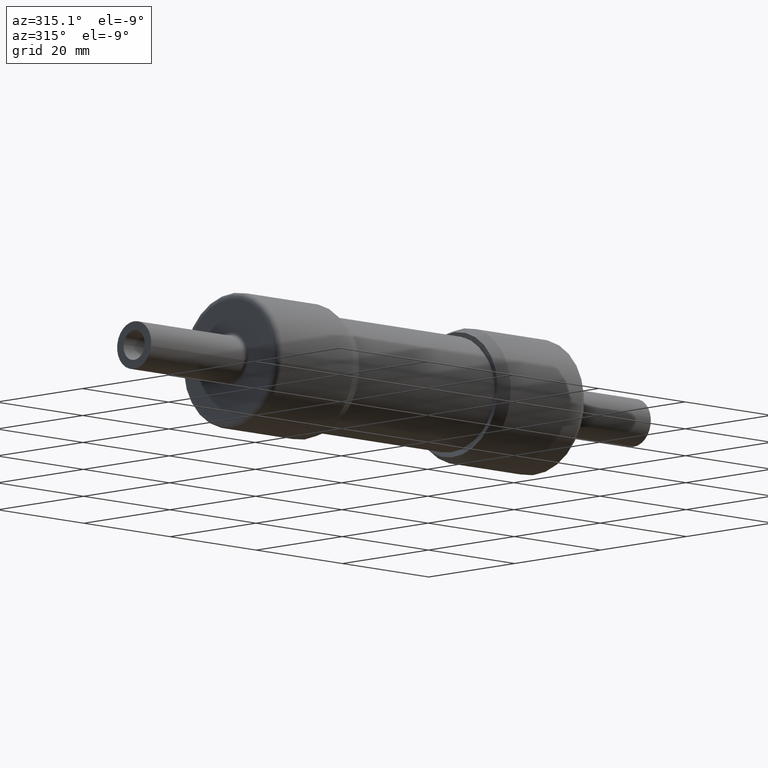
[diagram: clean part render]
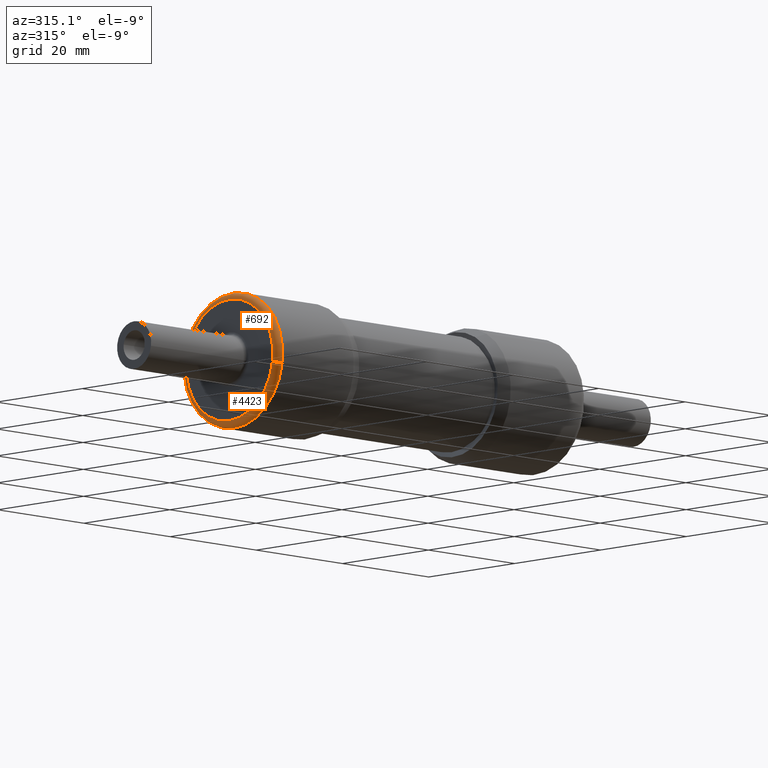
[diagram: same view with one multi-face feature highlighted, each face labeled with its STEP entity id]
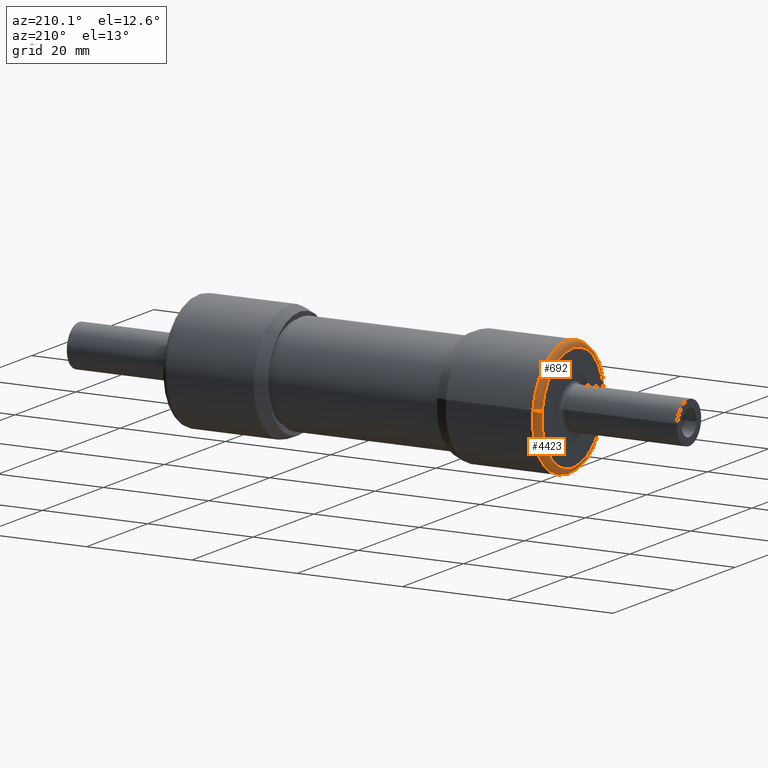
[diagram: same view with one multi-face feature highlighted, each face labeled with its STEP entity id]
A machine part, auxiliary view. The highlighted faces form ONE feature: a constant-radius fillet chain: 2 tangent blend faces with common blend radius 1.143 mm. The faces share edges in the B-rep.
A second angle (auxiliary view) of the same feature is appended — it is thin or edge-on in the first view.
Their STEP definitions:
[1] entity #692 (Torus):
#97 = DIRECTION ( 'NONE',  ( 9.449715977263552140E-17, 0.1403894676176966061, -0.9900963576248624776 ) ) ;
#584 = DIRECTION ( 'NONE',  ( 0.000000000000000000, -0.9900963576248624776, -0.1403894676176964673 ) ) ;
#692 = ADVANCED_FACE ( 'NONE', ( #5817 ), #1964, .T. ) ;
#926 = DIRECTION ( 'NONE',  ( 7.332862660272145490E-17, 0.9900963576248625886, 0.1403894676176964951 ) ) ;
#928 = EDGE_LOOP ( 'NONE', ( #5331, #3775, #2718, #1090 ) ) ;
#1090 = ORIENTED_EDGE ( 'NONE', *, *, #1818, .F. ) ;
#1119 = CARTESIAN_POINT ( 'NONE',  ( -0.1904999999999999472, 0.4386126864278159232, 0.06219253415463967677 ) ) ;
#1509 = AXIS2_PLACEMENT_3D ( 'NONE', #4929, #4395, #584 ) ;
#1580 = CARTESIAN_POINT ( 'NONE',  ( -0.1905000000000000304, -0.4386126864278139803, -0.06219253415463969065 ) ) ;
#1688 = CARTESIAN_POINT ( 'NONE',  ( -0.2355000000000001259, -0.3940583503346966610, -0.05587500811184357985 ) ) ;
#1818 = EDGE_CURVE ( 'NONE', #6496, #5041, #3591, .T. ) ;
#1964 = TOROIDAL_SURFACE ( 'NONE', #6317, 0.3980000000000000204, 0.04499999999999999833 ) ;
#2093 = CARTESIAN_POINT ( 'NONE',  ( -0.1905000000000000027, 1.173826660871846159E-16, -1.138256155996946668E-16 ) ) ;
#2225 = AXIS2_PLACEMENT_3D ( 'NONE', #3099, #5865, #3623 ) ;
#2229 = CARTESIAN_POINT ( 'NONE',  ( -0.2355000000000000426, 0.3940583503346969385, 0.05587500811184330229 ) ) ;
#2718 = ORIENTED_EDGE ( 'NONE', *, *, #4277, .T. ) ;
#3053 = DIRECTION ( 'NONE',  ( 7.708374699955566724E-17, 0.9900963576248625886, 0.1403894676176964951 ) ) ;
#3099 = CARTESIAN_POINT ( 'NONE',  ( -0.2354999999999999871, 1.212467626299230878E-16, -1.175726183078043669E-16 ) ) ;
#3112 = CIRCLE ( 'NONE', #1509, 0.04500000000000002609 ) ;
#3234 = AXIS2_PLACEMENT_3D ( 'NONE', #4721, #6333, #3053 ) ;
#3491 = VERTEX_POINT ( 'NONE', #1580 ) ;
#3591 = CIRCLE ( 'NONE', #2225, 0.3980000000000014637 ) ;
#3623 = DIRECTION ( 'NONE',  ( 8.579924603216875331E-17, 0.9900963576248625886, 0.1403894676176964951 ) ) ;
#3744 = DIRECTION ( 'NONE',  ( -1.000000000000000000, 8.586881206085282632E-17, -8.326672684688819499E-17 ) ) ;
#3775 = ORIENTED_EDGE ( 'NONE', *, *, #3986, .T. ) ;
#3986 = EDGE_CURVE ( 'NONE', #3491, #5166, #4385, .T. ) ;
#4277 = EDGE_CURVE ( 'NONE', #5166, #5041, #3112, .T. ) ;
#4385 = CIRCLE ( 'NONE', #3234, 0.4430000000000016702 ) ;
#4395 = DIRECTION ( 'NONE',  ( -9.449715977263550907E-17, -0.1403894676176964951, 0.9900963576248624776 ) ) ;
#4534 = CIRCLE ( 'NONE', #6378, 0.04500000000000002609 ) ;
#4721 = CARTESIAN_POINT ( 'NONE',  ( -0.1905000000000000027, 1.173826660871846159E-16, -1.138256155996946668E-16 ) ) ;
#4929 = CARTESIAN_POINT ( 'NONE',  ( -0.1904999999999999472, 0.3940583503346969385, 0.05587500811184330229 ) ) ;
#5016 = CARTESIAN_POINT ( 'NONE',  ( -0.1905000000000000304, -0.3940583503346966610, -0.05587500811184357985 ) ) ;
#5041 = VERTEX_POINT ( 'NONE', #2229 ) ;
#5166 = VERTEX_POINT ( 'NONE', #1119 ) ;
#5331 = ORIENTED_EDGE ( 'NONE', *, *, #6503, .F. ) ;
#5817 = FACE_OUTER_BOUND ( 'NONE', #928, .T. ) ;
#5865 = DIRECTION ( 'NONE',  ( -1.000000000000000000, 8.586881206085282632E-17, -8.326672684688819499E-17 ) ) ;
#6317 = AXIS2_PLACEMENT_3D ( 'NONE', #2093, #3744, #926 ) ;
#6333 = DIRECTION ( 'NONE',  ( -1.000000000000000000, 8.586881206085282632E-17, -8.326672684688819499E-17 ) ) ;
#6378 = AXIS2_PLACEMENT_3D ( 'NONE', #5016, #97, #6686 ) ;
#6496 = VERTEX_POINT ( 'NONE', #1688 ) ;
#6503 = EDGE_CURVE ( 'NONE', #3491, #6496, #4534, .T. ) ;
#6686 = DIRECTION ( 'NONE',  ( 0.000000000000000000, 0.9900963576248624776, 0.1403894676176964673 ) ) ;
[2] entity #4423 (Torus):
#97 = DIRECTION ( 'NONE',  ( 9.449715977263552140E-17, 0.1403894676176966061, -0.9900963576248624776 ) ) ;
#140 = AXIS2_PLACEMENT_3D ( 'NONE', #2463, #6379, #4252 ) ;
#255 = FACE_OUTER_BOUND ( 'NONE', #588, .T. ) ;
#584 = DIRECTION ( 'NONE',  ( 0.000000000000000000, -0.9900963576248624776, -0.1403894676176964673 ) ) ;
#588 = EDGE_LOOP ( 'NONE', ( #4812, #1203, #2235, #2858 ) ) ;
#1119 = CARTESIAN_POINT ( 'NONE',  ( -0.1904999999999999472, 0.4386126864278159232, 0.06219253415463967677 ) ) ;
#1203 = ORIENTED_EDGE ( 'NONE', *, *, #6503, .T. ) ;
#1509 = AXIS2_PLACEMENT_3D ( 'NONE', #4929, #4395, #584 ) ;
#1580 = CARTESIAN_POINT ( 'NONE',  ( -0.1905000000000000304, -0.4386126864278139803, -0.06219253415463969065 ) ) ;
#1645 = TOROIDAL_SURFACE ( 'NONE', #2220, 0.3980000000000000204, 0.04499999999999999833 ) ;
#1688 = CARTESIAN_POINT ( 'NONE',  ( -0.2355000000000001259, -0.3940583503346966610, -0.05587500811184357985 ) ) ;
#2211 = CIRCLE ( 'NONE', #140, 0.4430000000000016702 ) ;
#2220 = AXIS2_PLACEMENT_3D ( 'NONE', #3080, #6846, #4172 ) ;
#2229 = CARTESIAN_POINT ( 'NONE',  ( -0.2355000000000000426, 0.3940583503346969385, 0.05587500811184330229 ) ) ;
#2235 = ORIENTED_EDGE ( 'NONE', *, *, #4133, .F. ) ;
#2463 = CARTESIAN_POINT ( 'NONE',  ( -0.1905000000000000027, 1.173826660871846159E-16, -1.138256155996946668E-16 ) ) ;
#2858 = ORIENTED_EDGE ( 'NONE', *, *, #4277, .F. ) ;
#3080 = CARTESIAN_POINT ( 'NONE',  ( -0.1905000000000000027, 1.173826660871846159E-16, -1.138256155996946668E-16 ) ) ;
#3112 = CIRCLE ( 'NONE', #1509, 0.04500000000000002609 ) ;
#3491 = VERTEX_POINT ( 'NONE', #1580 ) ;
#3933 = CIRCLE ( 'NONE', #5870, 0.3980000000000014637 ) ;
#4023 = EDGE_CURVE ( 'NONE', #5166, #3491, #2211, .T. ) ;
#4133 = EDGE_CURVE ( 'NONE', #5041, #6496, #3933, .T. ) ;
#4172 = DIRECTION ( 'NONE',  ( 7.332862660272145490E-17, 0.9900963576248625886, 0.1403894676176964951 ) ) ;
#4252 = DIRECTION ( 'NONE',  ( 7.708374699955566724E-17, 0.9900963576248625886, 0.1403894676176964951 ) ) ;
#4277 = EDGE_CURVE ( 'NONE', #5166, #5041, #3112, .T. ) ;
#4357 = CARTESIAN_POINT ( 'NONE',  ( -0.2354999999999999871, 1.212467626299230878E-16, -1.175726183078043669E-16 ) ) ;
#4395 = DIRECTION ( 'NONE',  ( -9.449715977263550907E-17, -0.1403894676176964951, 0.9900963576248624776 ) ) ;
#4423 = ADVANCED_FACE ( 'NONE', ( #255 ), #1645, .T. ) ;
#4534 = CIRCLE ( 'NONE', #6378, 0.04500000000000002609 ) ;
#4812 = ORIENTED_EDGE ( 'NONE', *, *, #4023, .T. ) ;
#4862 = DIRECTION ( 'NONE',  ( -1.000000000000000000, 8.586881206085282632E-17, -8.326672684688819499E-17 ) ) ;
#4894 = DIRECTION ( 'NONE',  ( 8.579924603216875331E-17, 0.9900963576248625886, 0.1403894676176964951 ) ) ;
#4929 = CARTESIAN_POINT ( 'NONE',  ( -0.1904999999999999472, 0.3940583503346969385, 0.05587500811184330229 ) ) ;
#5016 = CARTESIAN_POINT ( 'NONE',  ( -0.1905000000000000304, -0.3940583503346966610, -0.05587500811184357985 ) ) ;
#5041 = VERTEX_POINT ( 'NONE', #2229 ) ;
#5166 = VERTEX_POINT ( 'NONE', #1119 ) ;
#5870 = AXIS2_PLACEMENT_3D ( 'NONE', #4357, #4862, #4894 ) ;
#6378 = AXIS2_PLACEMENT_3D ( 'NONE', #5016, #97, #6686 ) ;
#6379 = DIRECTION ( 'NONE',  ( -1.000000000000000000, 8.586881206085282632E-17, -8.326672684688819499E-17 ) ) ;
#6496 = VERTEX_POINT ( 'NONE', #1688 ) ;
#6503 = EDGE_CURVE ( 'NONE', #3491, #6496, #4534, .T. ) ;
#6686 = DIRECTION ( 'NONE',  ( 0.000000000000000000, 0.9900963576248624776, 0.1403894676176964673 ) ) ;
#6846 = DIRECTION ( 'NONE',  ( -1.000000000000000000, 8.586881206085282632E-17, -8.326672684688819499E-17 ) ) ;